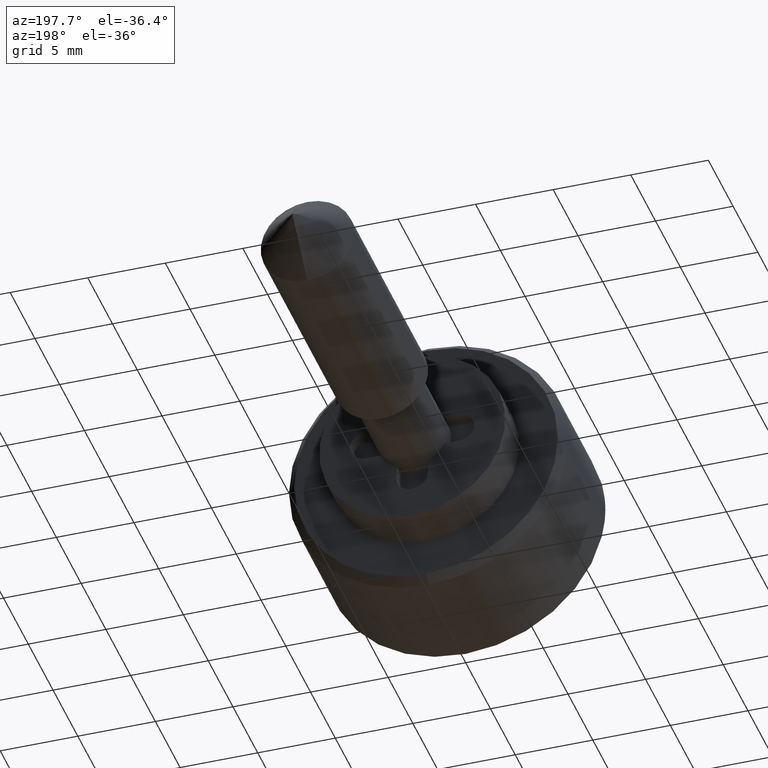
[diagram: clean part render]
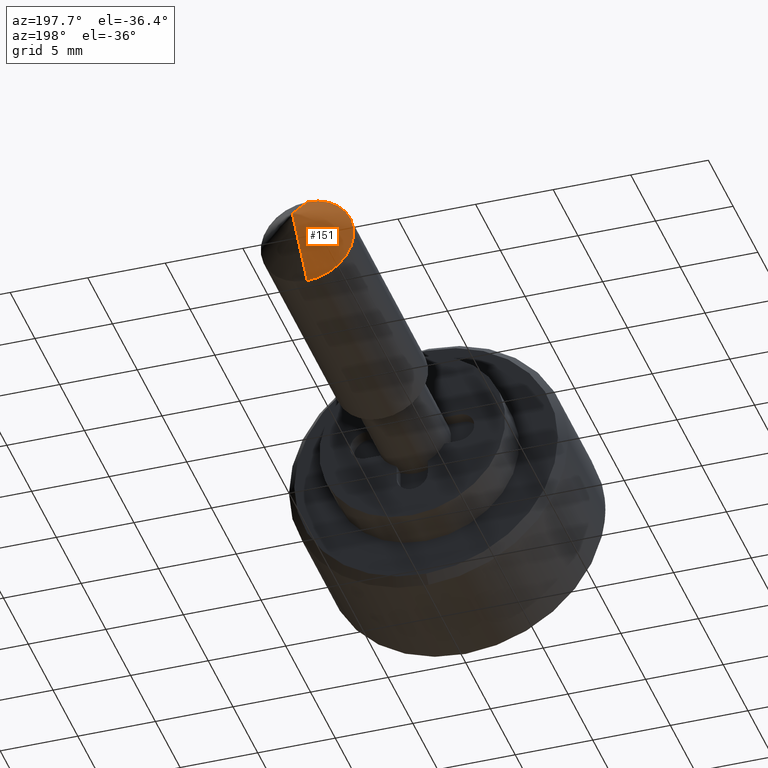
[diagram: same view with one face highlighted and labeled with its STEP entity id]
A machine part, auxiliary view. The second image highlights one B-rep face of the part: STEP entity #151.
In plain terms, the highlighted face is a freeform B-spline surface patch.
Its self-contained STEP definition (entity closure, byte-faithful):
#151=ADVANCED_FACE('',(#550),#549,.T.);
#549=( BOUNDED_SURFACE() B_SPLINE_SURFACE( 2,1,((#809,#810),(#811,#812),(#813,#814),(#815,#816),(#817,#818)), .UNSPECIFIED.,.F.,.F.,.F.) B_SPLINE_SURFACE_WITH_KNOTS((3,2,3),(2,2),(0.00000000000E+00,5.00000000000E-01,1.00000000000E+00),(0.00000000000E+00,1.00000000000E+00), .UNSPECIFIED. ) GEOMETRIC_REPRESENTATION_ITEM() RATIONAL_B_SPLINE_SURFACE(((1.00000000000E+00,1.00000000000E+00),(7.07106781187E-01,7.07106781187E-01),(1.00000000000E+00,1.00000000000E+00),(7.07106781187E-01,7.07106781187E-01),(1.00000000000E+00,1.00000000000E+00))) REPRESENTATION_ITEM('') SURFACE() );
#550=FACE_OUTER_BOUND('',#819,.T.);
#809=CARTESIAN_POINT('',(2.50000000000E+01,0.00000000000E+00,0.00000000000E+00));
#810=CARTESIAN_POINT('',(2.07573593129E+01,5.19573633741E-16,4.24264068712E+00));
#811=CARTESIAN_POINT('',(2.50000000000E+01,0.00000000000E+00,0.00000000000E+00));
#812=CARTESIAN_POINT('',(2.07573593129E+01,4.24264068712E+00,4.24264068712E+00));
#813=CARTESIAN_POINT('',(2.50000000000E+01,0.00000000000E+00,0.00000000000E+00));
#814=CARTESIAN_POINT('',(2.07573593129E+01,4.24264068712E+00,-2.59786816871E-16));
#815=CARTESIAN_POINT('',(2.50000000000E+01,0.00000000000E+00,0.00000000000E+00));
#816=CARTESIAN_POINT('',(2.07573593129E+01,4.24264068712E+00,-4.24264068712E+00));
#817=CARTESIAN_POINT('',(2.50000000000E+01,0.00000000000E+00,0.00000000000E+00));
#818=CARTESIAN_POINT('',(2.07573593129E+01,0.00000000000E+00,-4.24264068712E+00));
#819=EDGE_LOOP('',(#1019,#1020,#1021));
#1019=ORIENTED_EDGE('',*,*,#1125,.T.);
#1020=ORIENTED_EDGE('',*,*,#1127,.F.);
#1021=ORIENTED_EDGE('',*,*,#1126,.F.);
#1125=EDGE_CURVE('',#1764,#1756,#1765,.T.);
#1126=EDGE_CURVE('',#1764,#1757,#1771,.T.);
#1127=EDGE_CURVE('',#1757,#1756,#1777,.T.);
#1756=VERTEX_POINT('',#2173);
#1757=VERTEX_POINT('',#2174);
#1764=VERTEX_POINT('',#2179);
#1765=(BOUNDED_CURVE() B_SPLINE_CURVE(1,(#2180,#2181),.UNSPECIFIED.,.F.,.F.) B_SPLINE_CURVE_WITH_KNOTS((2,2),(0.00000000000E+00,7.07106783987E-01),.UNSPECIFIED.) CURVE() GEOMETRIC_REPRESENTATION_ITEM() RATIONAL_B_SPLINE_CURVE((1.00000000000E+00,1.00000000000E+00)) REPRESENTATION_ITEM('') );
#1771=(BOUNDED_CURVE() B_SPLINE_CURVE(1,(#2182,#2183),.UNSPECIFIED.,.F.,.F.) B_SPLINE_CURVE_WITH_KNOTS((2,2),(0.00000000000E+00,7.07106780467E-01),.UNSPECIFIED.) CURVE() GEOMETRIC_REPRESENTATION_ITEM() RATIONAL_B_SPLINE_CURVE((7.50000000000E-01,7.50000000000E-01)) REPRESENTATION_ITEM('') );
#1777=CIRCLE('',#2187,3.00000000000E+00);
#2173=CARTESIAN_POINT('',(2.20000000000E+01,-1.48029736617E-16,-3.00000000000E+00));
#2174=CARTESIAN_POINT('',(2.20000000000E+01,0.00000000000E+00,3.00000000000E+00));
#2179=CARTESIAN_POINT('',(2.50000000000E+01,0.00000000000E+00,0.00000000000E+00));
#2180=CARTESIAN_POINT('',(2.50000000000E+01,0.00000000000E+00,0.00000000000E+00));
#2181=CARTESIAN_POINT('',(2.19999999881E+01,-7.34763815203E-16,-3.00000001188E+00));
#2182=CARTESIAN_POINT('',(2.50000000000E+01,0.00000000000E+00,0.00000000000E+00));
#2183=CARTESIAN_POINT('',(2.20000000031E+01,8.37382643779E-16,2.99999999695E+00));
#2184=CARTESIAN_POINT('',(2.20000000000E+01,0.00000000000E+00,0.00000000000E+00));
#2185=DIRECTION('',(-1.00000000000E+00,0.00000000000E+00,0.00000000000E+00));
#2186=DIRECTION('',(0.00000000000E+00,-1.22460635382E-16,1.00000000000E+00));
#2187=AXIS2_PLACEMENT_3D('',#2184,#2185,#2186);